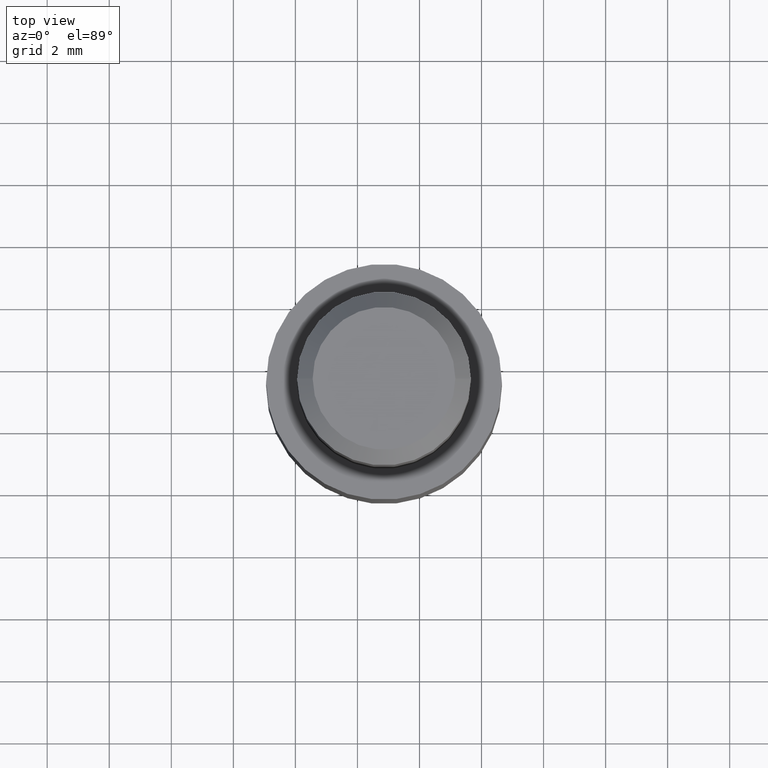
[diagram: clean part render]
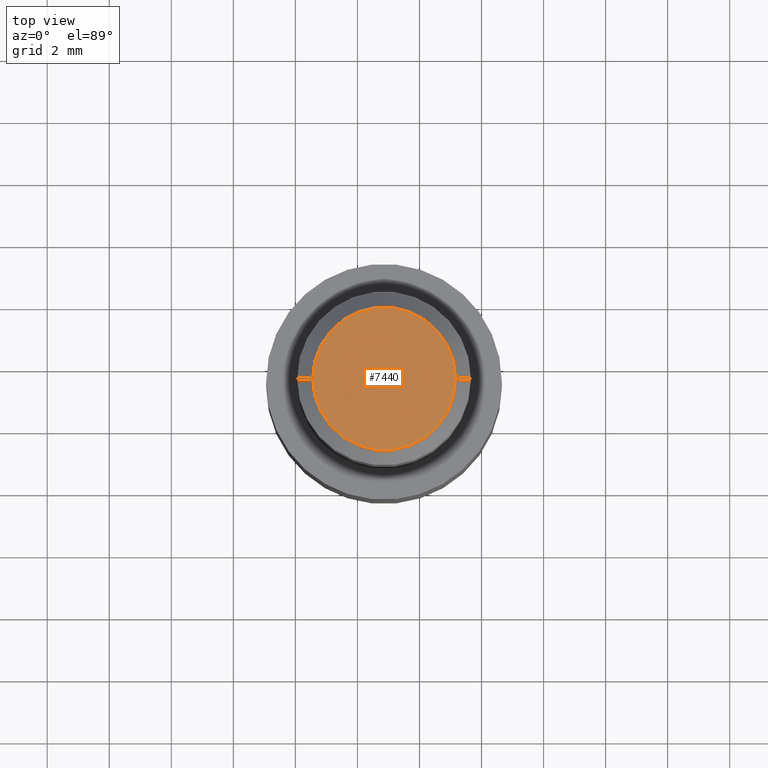
[diagram: same view with one face highlighted and labeled with its STEP entity id]
A machine part, top view. The second image highlights one B-rep face of the part: STEP entity #7440.
In plain terms, the highlighted planar face has unit normal (0, 0, 1).
Its self-contained STEP definition (entity closure, byte-faithful):
#1186 = CIRCLE ( 'NONE', #11651, 2.300000000000006500 ) ;
#1264 = ORIENTED_EDGE ( 'NONE', *, *, #10251, .T. ) ;
#2349 = PLANE ( 'NONE',  #9273 ) ;
#2507 = EDGE_CURVE ( 'NONE', #4776, #7482, #1186, .T. ) ;
#2602 = CARTESIAN_POINT ( 'NONE',  ( 0.0000000000000000000, 0.0000000000000000000, 21.00000000000000000 ) ) ;
#3169 = EDGE_LOOP ( 'NONE', ( #6494, #1264 ) ) ;
#3594 = DIRECTION ( 'NONE',  ( 1.000000000000000000, 0.0000000000000000000, 0.0000000000000000000 ) ) ;
#4276 = DIRECTION ( 'NONE',  ( 0.0000000000000000000, 0.0000000000000000000, 1.000000000000000000 ) ) ;
#4392 = DIRECTION ( 'NONE',  ( 0.0000000000000000000, 0.0000000000000000000, 1.000000000000000000 ) ) ;
#4449 = CIRCLE ( 'NONE', #10233, 2.300000000000006500 ) ;
#4457 = FACE_OUTER_BOUND ( 'NONE', #3169, .T. ) ;
#4776 = VERTEX_POINT ( 'NONE', #12333 ) ;
#6430 = CARTESIAN_POINT ( 'NONE',  ( 2.300000000000006500, 3.122849337825754900E-016, 21.00000000000000000 ) ) ;
#6494 = ORIENTED_EDGE ( 'NONE', *, *, #2507, .T. ) ;
#7440 = ADVANCED_FACE ( 'NONE', ( #4457 ), #2349, .T. ) ;
#7482 = VERTEX_POINT ( 'NONE', #6430 ) ;
#9273 = AXIS2_PLACEMENT_3D ( 'NONE', #12408, #4392, #11512 ) ;
#9695 = DIRECTION ( 'NONE',  ( 0.0000000000000000000, 0.0000000000000000000, 1.000000000000000000 ) ) ;
#10233 = AXIS2_PLACEMENT_3D ( 'NONE', #10366, #4276, #11404 ) ;
#10251 = EDGE_CURVE ( 'NONE', #7482, #4776, #4449, .T. ) ;
#10366 = CARTESIAN_POINT ( 'NONE',  ( 0.0000000000000000000, 0.0000000000000000000, 21.00000000000000000 ) ) ;
#11404 = DIRECTION ( 'NONE',  ( 1.000000000000000000, 0.0000000000000000000, 0.0000000000000000000 ) ) ;
#11512 = DIRECTION ( 'NONE',  ( 1.000000000000000000, 0.0000000000000000000, -0.0000000000000000000 ) ) ;
#11651 = AXIS2_PLACEMENT_3D ( 'NONE', #2602, #9695, #3594 ) ;
#12333 = CARTESIAN_POINT ( 'NONE',  ( -2.300000000000006500, 0.0000000000000000000, 21.00000000000000000 ) ) ;
#12408 = CARTESIAN_POINT ( 'NONE',  ( 0.0000000000000000000, 0.0000000000000000000, 21.00000000000000000 ) ) ;